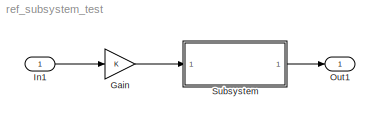
MODEL ref_subsystem_test
KIND model
BLOCK [Gain] Gain
  OutDataTypeStr = Inherit: Inherit via internal rule
  ParamDataTypeStr = Inherit: Inherit via internal rule
  SID = 6
  SaturateOnIntegerOverflow = off
BLOCK [Inport] In1
  IconDisplay = Port number
  OutDataTypeStr = double
  PortDimensions = 1
  SID = 1
  SampleTime = 0
  SamplingMode = Sample based
  SignalType = real
BLOCK [Outport] Out1
  IconDisplay = Port number
  OutDataTypeStr = double
  PortDimensions = 1
  SID = 2
  SampleTime = 0
  SamplingMode = Sample based
  SignalType = real
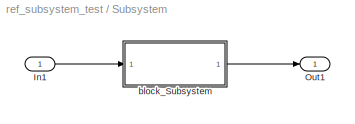
BLOCK [SubSystem] Subsystem
  Ports = [1, 1]
  RequestExecContextInheritance = off
  SID = 3
  TreatAsAtomicUnit = on
  Variant = off
BLOCK [Inport] Subsystem/In1
  IconDisplay = Port number
  SID = 4
BLOCK [Outport] Subsystem/Out1
  IconDisplay = Port number
  SID = 5
BLOCK [ModelReference] Subsystem/block_Subsystem
  ModelNameDialog = ref_subsystem_sub_test.mdl
  ModelReferenceVersion = 1.15
  Ports = [1, 1]
  SID = 10
  Variant = off
LINE Gain:1 -> Subsystem:1
LINE In1:1 -> Gain:1
LINE Subsystem/In1:1 -> Subsystem/block_Subsystem:1
LINE Subsystem/block_Subsystem:1 -> Subsystem/Out1:1
LINE Subsystem:1 -> Out1:1
